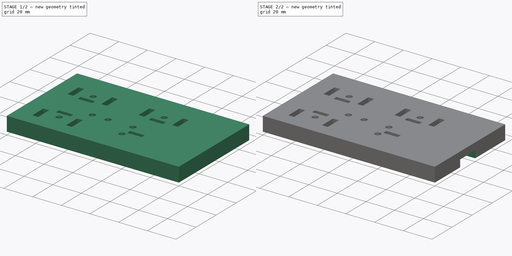
[diagram: build sequence overview — one tinted view per stage of 2, left to right]
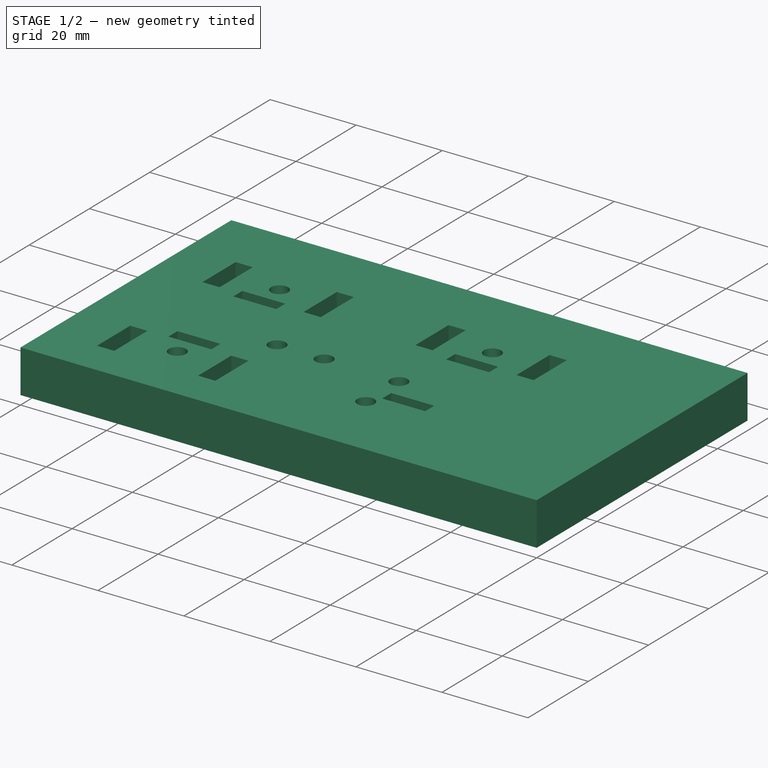
[diagram: stage 1 of 2 — iso view after this stage's code; geometry added in this stage tinted green]
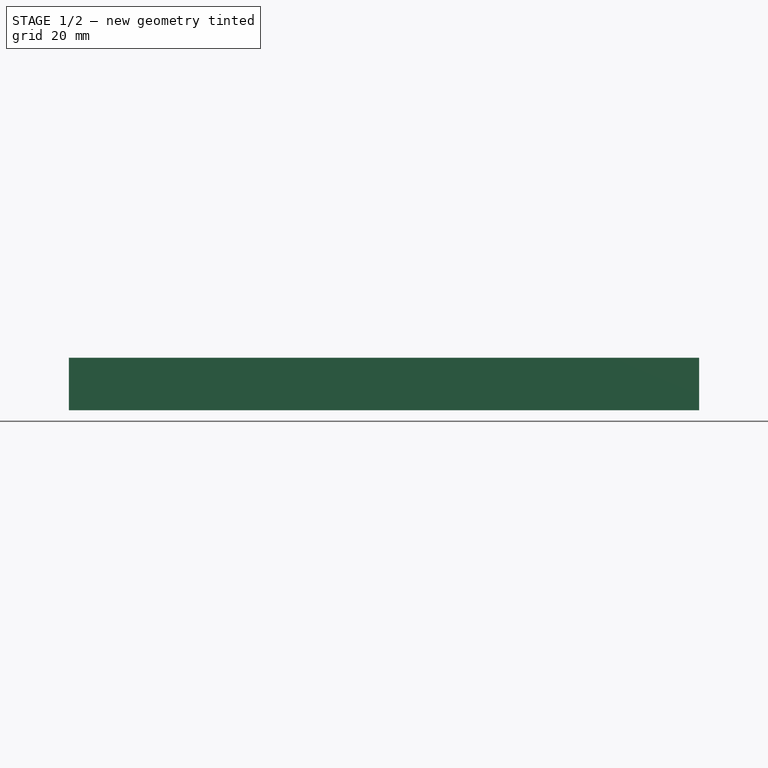
[diagram: stage 1 of 2 — front view after this stage's code; geometry added in this stage tinted green]
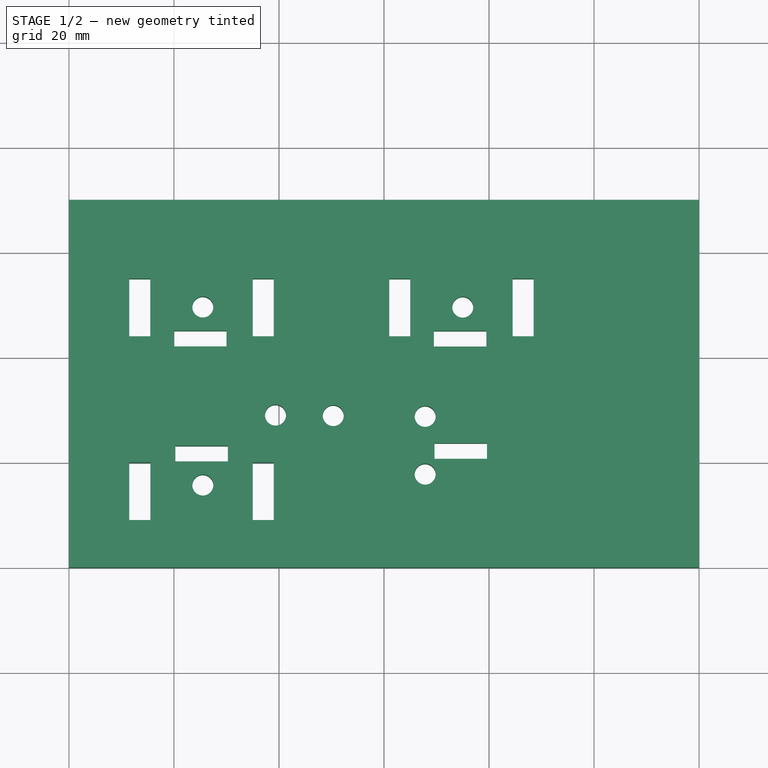
[diagram: stage 1 of 2 — top view after this stage's code; geometry added in this stage tinted green]
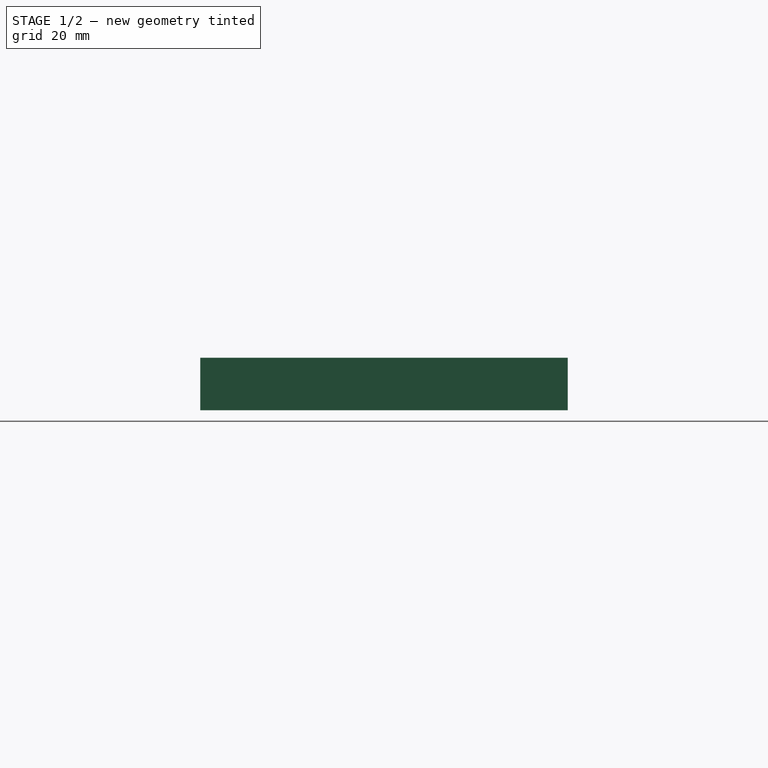
[diagram: stage 1 of 2 — right view after this stage's code; geometry added in this stage tinted green]
FCSTD DOCUMENT  (FreeCAD 0.21R33771 (Git))
Label: 3d_plaque
License: All rights reserved
LicenseURL: https://en.wikipedia.org/wiki/All_rights_reserved
objects: Sketcher::SketchObject×7, PartDesign::Body×2, PartDesign::Pocket×2, PartDesign::Pad×1
note: 15 computed .brp shape members not serialized (recipe doc carries the construction recipe); baked Part::Feature solids carry a one-line shape summary decoded from their .brp

FEATURE [Sketcher::SketchObject] Sketch
  FullyConstrained = true
  MapMode = 5
  Support = -> [XY_Plane]
FEATURE [Sketcher::SketchObject] Sketch004
  FullyConstrained = false
  MapMode = 5
  Placement = pos=(0,0,5) rot=(0,0,1;0rad)
  sketch-geometry (4):
    g0: LineSegment StartX=0 StartY=40.1336 StartZ=0 EndX=120 EndY=40.1336 EndZ=0
    g1: LineSegment StartX=120 StartY=40.1336 StartZ=0 EndX=120 EndY=25.1336 EndZ=0
    g2: LineSegment StartX=120 StartY=25.1336 StartZ=0 EndX=0 EndY=25.1336 EndZ=0
    g3: LineSegment StartX=0 StartY=25.1336 StartZ=0 EndX=0 EndY=40.1336 EndZ=0
  constraints (11):
    c: Coincident(g0,g1)
    c: Coincident(g1,g2)
    c: Coincident(g2,g3)
    c: Coincident(g3,g0)
    c: Horizontal(g0)
    c: Horizontal(g2)
    c: Vertical(g1)
    c: Vertical(g3)
    c: PointOnObject(g0,g-2)
    c: Distance(g0) = 120
    c: Distance(g3) = 15
FEATURE [PartDesign::Body] Body001
  Origin = -> Origin001
FEATURE [Sketcher::SketchObject] Sketch005
  FullyConstrained = false
  MapMode = 5
  Placement = pos=(0,0,5) rot=(0,0,1;0rad)
  sketch-geometry (54):
    g0: LineSegment StartX=35 StartY=55 StartZ=0 EndX=39 EndY=55 EndZ=0
    g1: LineSegment StartX=39 StartY=55 StartZ=0 EndX=39 EndY=44 EndZ=0
    g2: LineSegment StartX=39 StartY=44 StartZ=0 EndX=35 EndY=44 EndZ=0
    g3: LineSegment StartX=35 StartY=44 StartZ=0 EndX=35 EndY=55 EndZ=0
    g4: LineSegment StartX=11.5 StartY=20 StartZ=0 EndX=15.5 EndY=20 EndZ=0
    g5: LineSegment StartX=15.5 StartY=20 StartZ=0 EndX=15.5 EndY=9 EndZ=0
    g6: LineSegment StartX=15.5 StartY=9 StartZ=0 EndX=11.5 EndY=9 EndZ=0
    g7: LineSegment StartX=11.5 StartY=9 StartZ=0 EndX=11.5 EndY=20 EndZ=0
    g8: LineSegment StartX=35 StartY=20 StartZ=0 EndX=39 EndY=20 EndZ=0
    g9: LineSegment StartX=39 StartY=20 StartZ=0 EndX=39 EndY=9 EndZ=0
    g10: LineSegment StartX=39 StartY=9 StartZ=0 EndX=35 EndY=9 EndZ=0
    g11: LineSegment StartX=35 StartY=9 StartZ=0 EndX=35 EndY=20 EndZ=0
    g12: LineSegment StartX=61 StartY=55 StartZ=0 EndX=65 EndY=55 EndZ=0
    g13: LineSegment StartX=65 StartY=55 StartZ=0 EndX=65 EndY=44 EndZ=0
    g14: LineSegment StartX=65 StartY=44 StartZ=0 EndX=61 EndY=44 EndZ=0
    g15: LineSegment StartX=61 StartY=44 StartZ=0 EndX=61 EndY=55 EndZ=0
    g16: LineSegment StartX=84.5 StartY=55 StartZ=0 EndX=88.5 EndY=55 EndZ=0
    g17: LineSegment StartX=88.5 StartY=55 StartZ=0 EndX=88.5 EndY=44 EndZ=0
    g18: LineSegment StartX=88.5 StartY=44 StartZ=0 EndX=84.5 EndY=44 EndZ=0
    g19: LineSegment StartX=84.5 StartY=44 StartZ=0 EndX=84.5 EndY=55 EndZ=0
    g20: LineSegment StartX=11.4993 StartY=55 StartZ=0 EndX=15.4993 EndY=55 EndZ=0
    g21: LineSegment StartX=15.4993 StartY=55 StartZ=0 EndX=15.4993 EndY=44 EndZ=0
    g22: LineSegment StartX=15.4993 StartY=44 StartZ=0 EndX=11.4993 EndY=44 EndZ=0
    g23: LineSegment StartX=11.4993 StartY=44 StartZ=0 EndX=11.4993 EndY=55 EndZ=0
    g24: Circle CenterX=25.4993 CenterY=49.5893 CenterZ=0 NormalX=0 NormalY=0 NormalZ=1 AngleXU=0 Radius=2
    g25: Circle CenterX=25.5 CenterY=15.6762 CenterZ=0 NormalX=0 NormalY=0 NormalZ=1 AngleXU=0 Radius=2
    g26: Circle CenterX=75 CenterY=49.5606 CenterZ=0 NormalX=0 NormalY=0 NormalZ=1 AngleXU=0 Radius=2
    g27: GeomPoint X=75 Y=49.5606 Z=0
    g28: GeomPoint X=75 Y=49.5606 Z=0
    g29: GeomPoint X=24.9883 Y=49.4838 Z=0
    g30: Circle CenterX=39.3402 CenterY=29 CenterZ=0 NormalX=0 NormalY=0 NormalZ=1 AngleXU=0 Radius=2
    g31: Circle CenterX=50.3398 CenterY=28.9054 CenterZ=0 NormalX=0 NormalY=0 NormalZ=1 AngleXU=0 Radius=2
    g32: Circle CenterX=67.8392 CenterY=28.7548 CenterZ=0 NormalX=0 NormalY=0 NormalZ=1 AngleXU=0 Radius=2
    g33: Circle CenterX=67.8392 CenterY=17.7548 CenterZ=0 NormalX=0 NormalY=0 NormalZ=1 AngleXU=0 Radius=2
    g34: LineSegment StartX=20 StartY=45.0893 StartZ=0 EndX=20 EndY=42.0893 EndZ=0
    g35: LineSegment StartX=20 StartY=42.0893 StartZ=0 EndX=30 EndY=42.0893 EndZ=0
    g36: LineSegment StartX=30 StartY=42.0893 StartZ=0 EndX=30 EndY=45.0893 EndZ=0
    g37: LineSegment StartX=30 StartY=45.0893 StartZ=0 EndX=20 EndY=45.0893 EndZ=0
    g38: GeomPoint X=25 Y=43.5893 Z=0
    g39: LineSegment StartX=20.265 StartY=23.1716 StartZ=0 EndX=20.265 EndY=20.1716 EndZ=0
    g40: LineSegment StartX=20.265 StartY=20.1716 StartZ=0 EndX=30.265 EndY=20.1716 EndZ=0
    g41: LineSegment StartX=30.265 StartY=20.1716 StartZ=0 EndX=30.265 EndY=23.1716 EndZ=0
    g42: LineSegment StartX=30.265 StartY=23.1716 StartZ=0 EndX=20.265 EndY=23.1716 EndZ=0
    g43: GeomPoint X=25.265 Y=21.6716 Z=0
    g44: LineSegment StartX=69.5 StartY=45.0606 StartZ=0 EndX=69.5 EndY=42.0606 EndZ=0
    g45: LineSegment StartX=69.5 StartY=42.0606 StartZ=0 EndX=79.5 EndY=42.0606 EndZ=0
    g46: LineSegment StartX=79.5 StartY=42.0606 StartZ=0 EndX=79.5 EndY=45.0606 EndZ=0
    g47: LineSegment StartX=79.5 StartY=45.0606 StartZ=0 EndX=69.5 EndY=45.0606 EndZ=0
    g48: GeomPoint X=74.5 Y=43.5606 Z=0
    g49: LineSegment StartX=79.6211 StartY=20.6737 StartZ=0 EndX=79.6211 EndY=23.6737 EndZ=0
    g50: LineSegment StartX=79.6211 StartY=23.6737 StartZ=0 EndX=69.6211 EndY=23.6737 EndZ=0
    g51: LineSegment StartX=69.6211 StartY=23.6737 StartZ=0 EndX=69.6211 EndY=20.6737 EndZ=0
    g52: LineSegment StartX=69.6211 StartY=20.6737 StartZ=0 EndX=79.6211 EndY=20.6737 EndZ=0
    g53: GeomPoint X=74.6211 Y=22.1737 Z=0
  constraints (136):
    c: Coincident(g0,g1)
    c: Coincident(g1,g2)
    c: Coincident(g2,g3)
    c: Coincident(g3,g0)
    c: Horizontal(g0)
    c: Horizontal(g2)
    c: Vertical(g1)
    c: Vertical(g3)
    c: Coincident(g4,g5)
    c: Coincident(g5,g6)
    c: Coincident(g6,g7)
    c: Coincident(g7,g4)
    c: Horizontal(g4)
    c: Horizontal(g6)
    c: Vertical(g5)
    c: Vertical(g7)
    c: Coincident(g8,g9)
    c: Coincident(g9,g10)
    c: Coincident(g10,g11)
    c: Coincident(g11,g8)
    c: Horizontal(g8)
    c: Horizontal(g10)
    c: Vertical(g9)
    c: Vertical(g11)
    c: Coincident(g12,g13)
    c: Coincident(g13,g14)
    c: Coincident(g14,g15)
    c: Coincident(g15,g12)
    c: Horizontal(g12)
    c: Horizontal(g14)
    c: Vertical(g13)
    c: Vertical(g15)
    c: Coincident(g16,g17)
    c: Coincident(g17,g18)
    c: Coincident(g18,g19)
    c: Coincident(g19,g16)
    c: Horizontal(g16)
    c: Horizontal(g18)
    c: Vertical(g17)
    c: Vertical(g19)
    c: DistanceY(g1,g1) = 11
    c: DistanceY(g13,g13) = 11
    c: DistanceY(g17,g17) = 11
    c: DistanceY(g9,g9) = 11
    c: DistanceY(g5,g5) = 11
    c: DistanceX(g2,g1) = 4
    c: DistanceX(g14,g14) = 4
    c: DistanceX(g18,g18) = 4
    c: DistanceX(g6,g6) = 4
    c: DistanceX(g10,g9) = 4
    c: DistanceY(g-1,g2) = 44
    c: DistanceY(g-1,g14) = 44
    c: DistanceY(g-1,g18) = 44
    c: Distance(g12,g16) = 19.5
    c: Distance(g4,g8) = 19.5
    c: Distance(g0,g-2) = 35
    c: Distance(g8,g-2) = 35
    c: Coincident(g20,g21)
    c: Coincident(g21,g22)
    c: Coincident(g22,g23)
    c: Coincident(g23,g20)
    c: Horizontal(g20)
    c: Horizontal(g22)
    c: Vertical(g21)
    c: Vertical(g23)
    c: DistanceY(g21,g21) = 11
    c: DistanceX(g22,g22) = 4
    c: Distance(g21,g-1) = 44
    c: DistanceY(g4,g21) = 24
    c: DistanceY(g8,g2) = 24
    c: Diameter(g24) = 4
    c: Distance(g24,g21) = 10
    c: Diameter(g25) = 4
    c: Distance(g25,g5) = 10
    c: Diameter(g26) = 4
    c: Distance(g26,g13) = 10
    c: Coincident(g27,g26)
    c: Coincident(g28,g26)
    c: Diameter(g30) = 4
    c: Distance(g30,g8) = 9
    c: Distance(g30,g31) = 11
    c: Diameter(g31) = 4
    c: Diameter(g32) = 4
    c: Distance(g31,g32) = 17.5
    c: Distance(g32,g33) = 11
    c: Diameter(g33) = 4
    c: Distance(g14,g1) = 22
    c: Coincident(g34,g35)
    c: Coincident(g35,g36)
    c: Coincident(g36,g37)
    c: Coincident(g37,g34)
    c: Horizontal(g35)
    c: Horizontal(g37)
    c: Vertical(g34)
    c: Vertical(g36)
    c: Symmetric(g35,g34,g38)
    c: Coincident(g39,g40)
    c: Coincident(g40,g41)
    c: Coincident(g41,g42)
    c: Coincident(g42,g39)
    c: Horizontal(g40)
    c: Horizontal(g42)
    c: Vertical(g39)
    c: Vertical(g41)
    c: Symmetric(g40,g39,g43)
    c: Distance(g40) = 10
    c: Distance(g41) = 3
    c: Distance(g37) = 10
    c: Coincident(g44,g45)
    c: Coincident(g45,g46)
    c: Coincident(g46,g47)
    c: Coincident(g47,g44)
    c: Horizontal(g45)
    c: Horizontal(g47)
    c: Vertical(g44)
    c: Vertical(g46)
    c: Symmetric(g45,g44,g48)
    c: Distance(g45) = 10
    c: Distance(g44) = 3
    c: Coincident(g49,g50)
    c: Coincident(g50,g51)
    c: Coincident(g51,g52)
    c: Coincident(g52,g49)
    c: Horizontal(g50)
    c: Horizontal(g52)
    c: Vertical(g49)
    c: Vertical(g51)
    c: Symmetric(g50,g49,g53)
    c: Distance(g50) = 10
    c: Distance(g49) = 3
    c: Distance(g36) = 3
    c: Distance(g43,g25) = 6
    c: DistanceY(g48,g26) = 6
    c: DistanceX(g48,g18) = 10
    c: DistanceX(g38,g2) = 10
    c: DistanceY(g38,g24) = 6
FEATURE [Sketcher::SketchObject] Sketch001
  FullyConstrained = false
  MapMode = 5
  Support = -> [XY_Plane]
  sketch-geometry (5):
    g0: LineSegment StartX=0 StartY=0 StartZ=0 EndX=120 EndY=0 EndZ=0
    g1: LineSegment StartX=120 StartY=0 StartZ=0 EndX=120 EndY=70 EndZ=0
    g2: LineSegment StartX=120 StartY=70 StartZ=0 EndX=0 EndY=70 EndZ=0
    g3: LineSegment StartX=0 StartY=70 StartZ=0 EndX=0 EndY=0 EndZ=0
    g4: GeomPoint X=31.6156 Y=-13.4941 Z=0
  constraints (11):
    c: Coincident(g0,g1)
    c: Coincident(g1,g2)
    c: Coincident(g2,g3)
    c: Coincident(g3,g0)
    c: Horizontal(g0)
    c: Horizontal(g2)
    c: Vertical(g1)
    c: Vertical(g3)
    c: Coincident(g0,g-1)
    c: DistanceX(g0,g0) = 120
    c: DistanceY(g3,g3) = 70
FEATURE [PartDesign::Pad] Pad
  Direction = (0,0,1)
  Length = 10
  Length2 = 10
  Profile = -> Sketch001
  ReferenceAxis = -> Sketch001 [N_Axis]
  Type = 0
FEATURE [Sketcher::SketchObject] Sketch002
  FullyConstrained = true
  MapMode = 5
  Placement = pos=(0,0,10) rot=(0,0,1;0rad)
  Support = -> [Pad]
FEATURE [Sketcher::SketchObject] Sketch006
  FullyConstrained = true
  MapMode = 5
  Placement = pos=(0,0,10) rot=(0,0,1;0rad)
  Support = -> [Pad]
FEATURE [PartDesign::Pocket] Pocket
  BaseFeature = -> Pad
  Direction = (0,0,-1)
  Length = 36
  Length2 = 5
  Profile = -> Sketch005
  ReferenceAxis = -> Sketch005 [N_Axis]
  Type = 4
  expr: Length = 36 mm
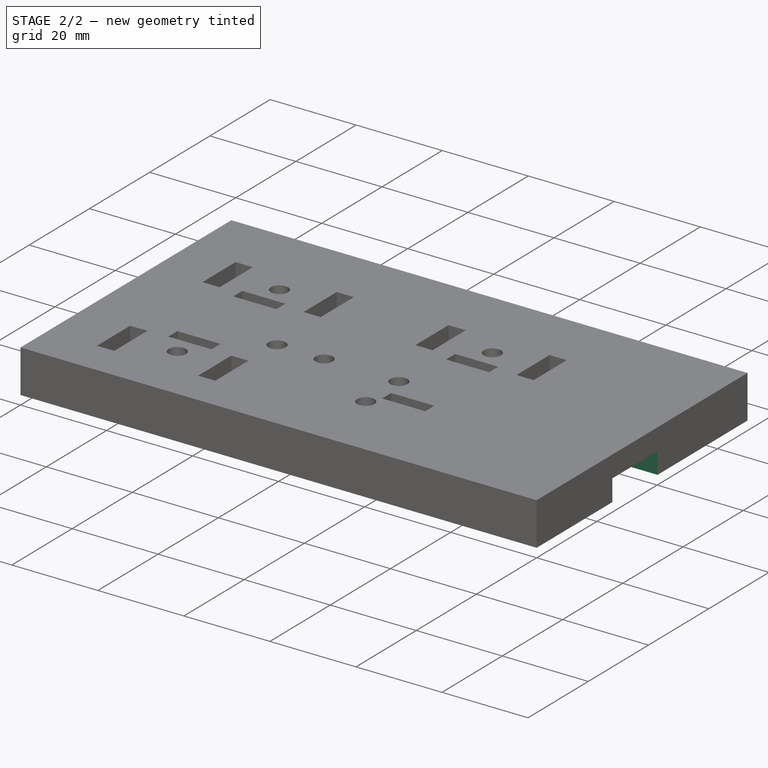
[diagram: stage 2 of 2 — iso view after this stage's code; geometry added in this stage tinted green]
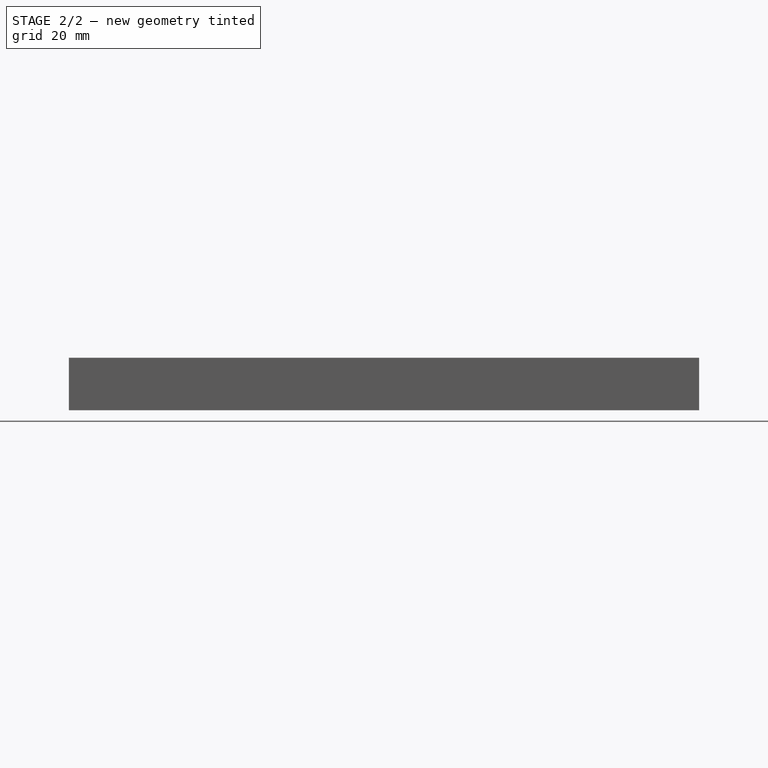
[diagram: stage 2 of 2 — front view after this stage's code; geometry added in this stage tinted green]
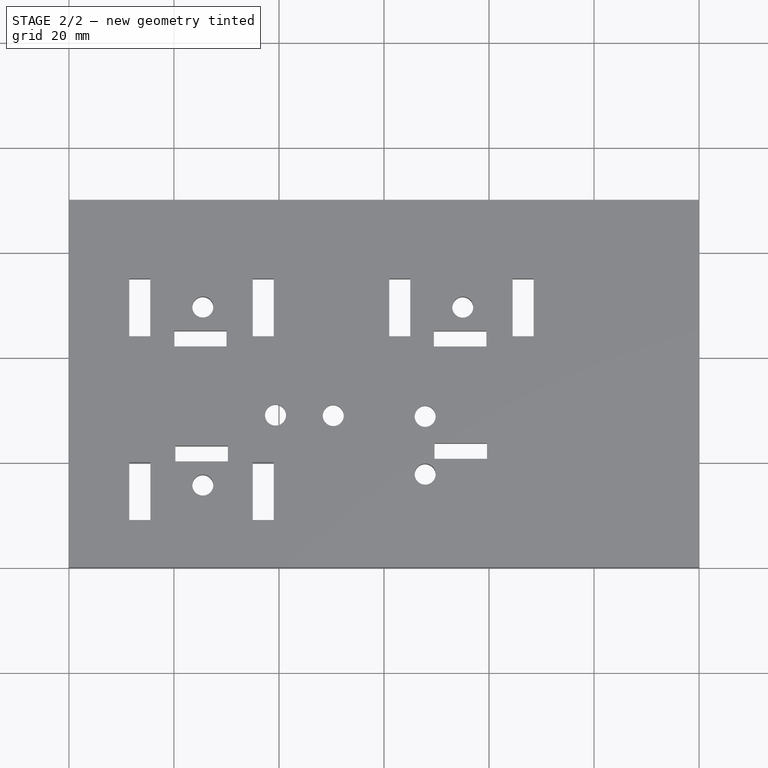
[diagram: stage 2 of 2 — top view after this stage's code; geometry added in this stage tinted green]
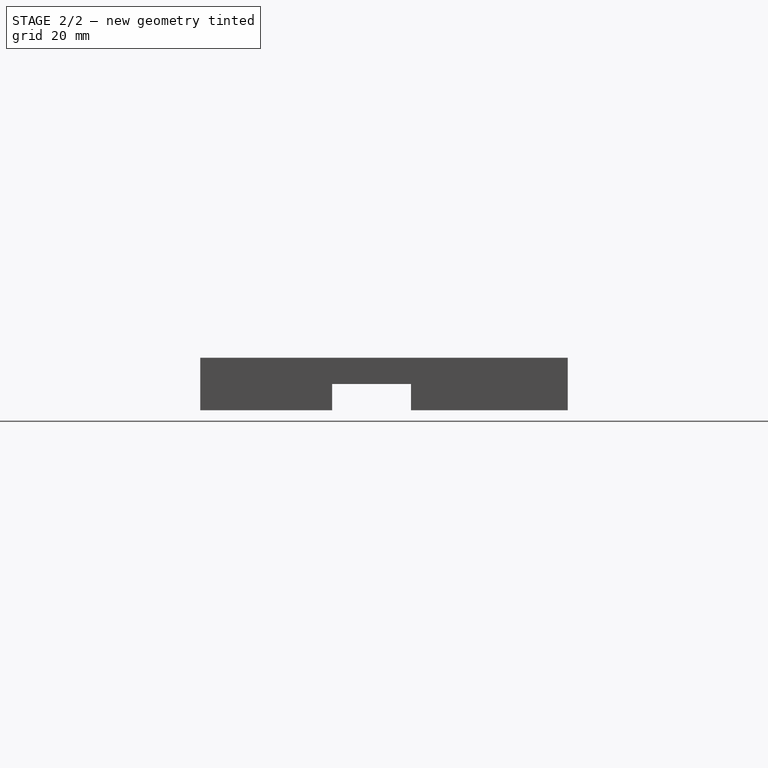
[diagram: stage 2 of 2 — right view after this stage's code; geometry added in this stage tinted green]
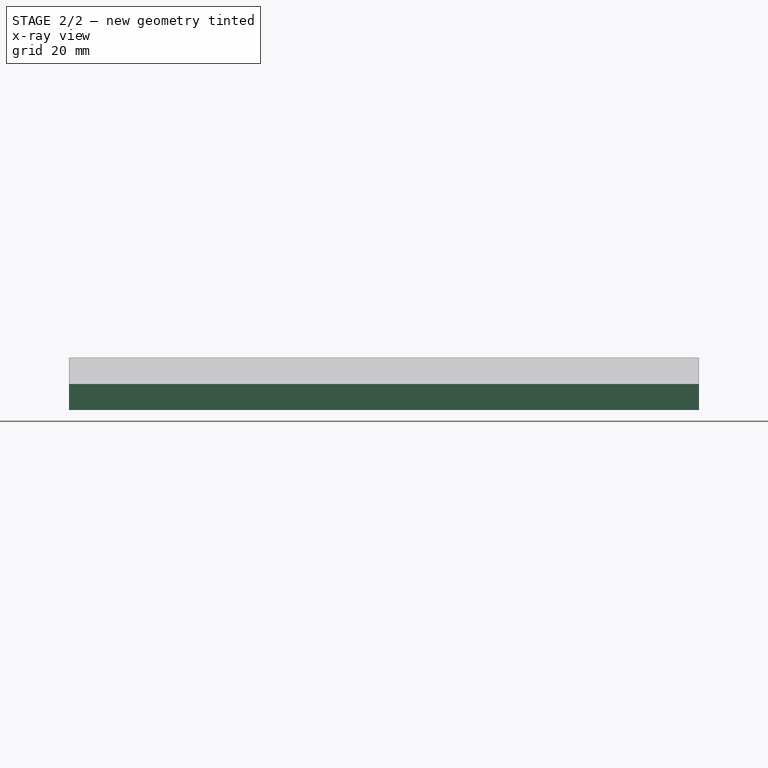
[diagram: stage 2 of 2 — x-ray composite at the front view; earlier geometry ghosted, this stage's added geometry solid]
FEATURE [PartDesign::Pocket] Pocket001
  BaseFeature = -> Pocket
  Direction = (0,0,-1)
  Length = 10
  Length2 = 5
  Profile = -> Sketch004
  ReferenceAxis = -> Sketch004 [N_Axis]
  Type = 0
  UseCustomVector = true
FEATURE [Sketcher::SketchObject] Sketch007
  FullyConstrained = true
  MapMode = 5
  Support = -> [XY_Plane]
FEATURE [PartDesign::Body] Body
  Group = -> [Sketch,Sketch001,Pad,Sketch002,Sketch004,Sketch005,Sketch006,Pocket,Pocket001,Sketch007]
  Origin = -> Origin
  Tip = -> Pocket001
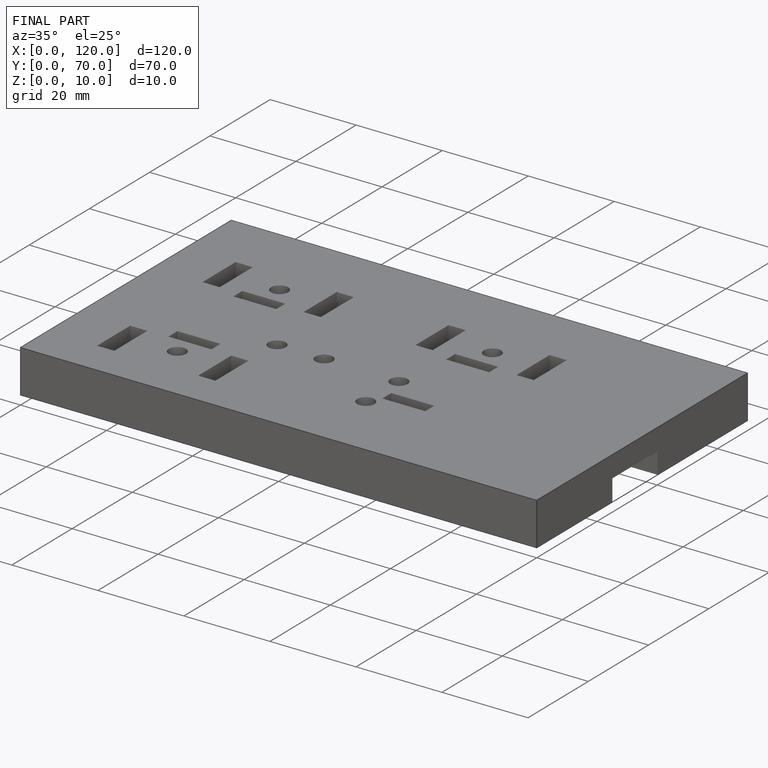
[diagram: finished part — iso view with bounding-box wireframe]
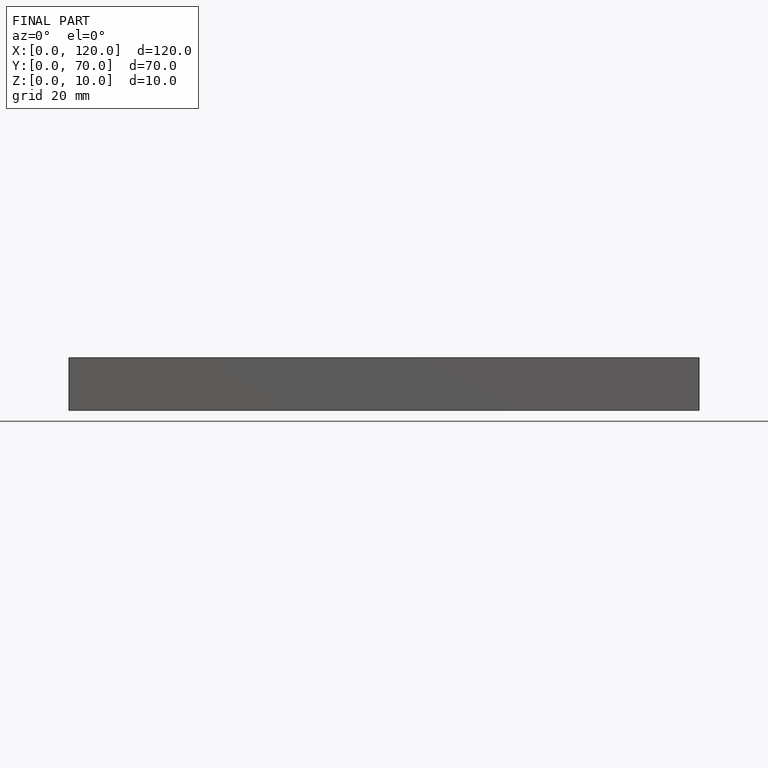
[diagram: finished part — front view with bounding-box wireframe]
